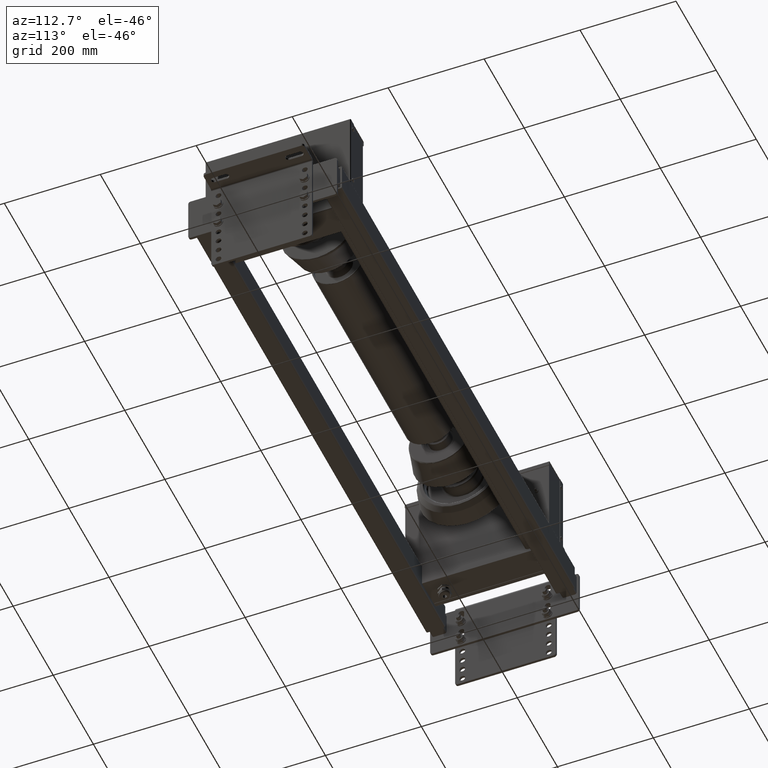
[diagram: clean part render]
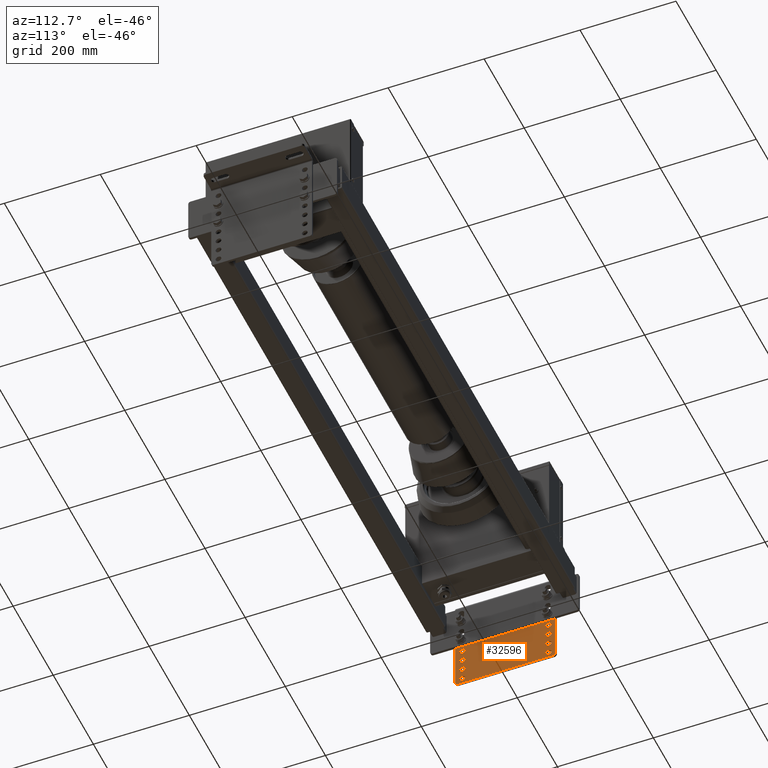
[diagram: same view with one face highlighted and labeled with its STEP entity id]
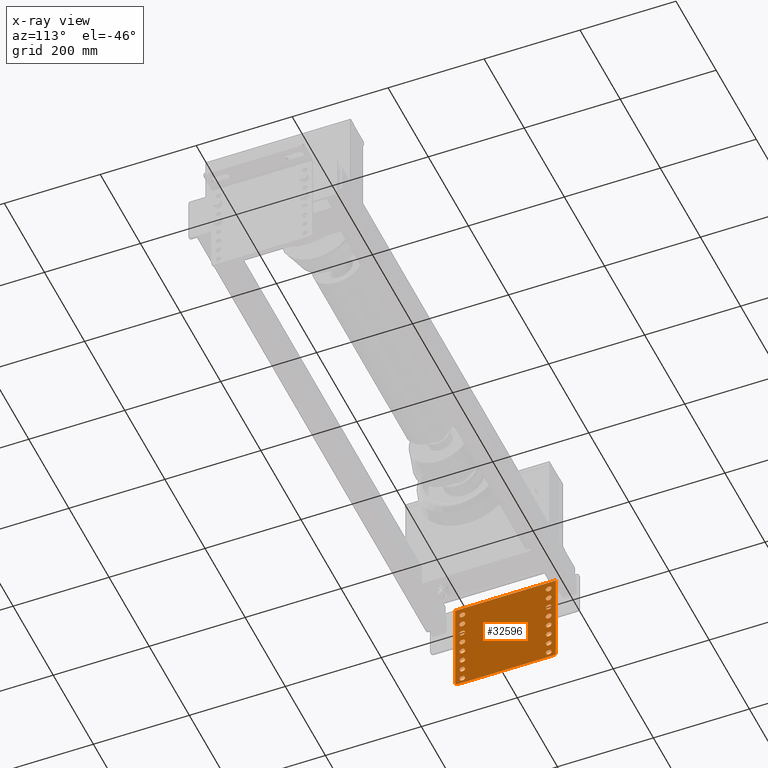
[diagram: x-ray of the same camera — body ghosted, the highlighted face saturated]
A machine part, auxiliary view. The second image highlights one B-rep face of the part: STEP entity #32596.
The next image is the same camera in x-ray: the body ghosted, the highlighted face saturated — about 0% of this face is hidden behind the body in this view.
In plain terms, the highlighted planar face has unit normal (-1, -0, -0).
Its self-contained STEP definition (entity closure, byte-faithful):
#31624=CARTESIAN_POINT('',(-80.957093014422583,-114.089066365486590,-0.500000000000000));
#31625=VERTEX_POINT('',#31624);
#31641=CARTESIAN_POINT('',(-92.957093014422583,-114.089066365486590,-0.500000000000000));
#31642=VERTEX_POINT('',#31641);
#31649=CARTESIAN_POINT('',(-86.957093014422583,-114.089066365486590,-0.500000000000000));
#31650=DIRECTION('',(0.0,0.0,1.0));
#31651=DIRECTION('',(1.0,0.0,0.0));
#31652=AXIS2_PLACEMENT_3D('',#31649,#31650,#31651);
#31653=CIRCLE('',#31652,6.0);
#31654=EDGE_CURVE('',#31625,#31642,#31653,.T.);
#31666=CARTESIAN_POINT('',(99.042906985577417,-114.089066365486590,-0.500000000000000));
#31667=VERTEX_POINT('',#31666);
#31683=CARTESIAN_POINT('',(87.042906985577417,-114.089066365486590,-0.500000000000000));
#31684=VERTEX_POINT('',#31683);
#31691=CARTESIAN_POINT('',(93.042906985577417,-114.089066365486590,-0.500000000000000));
#31692=DIRECTION('',(0.0,0.0,1.0));
#31693=DIRECTION('',(1.0,0.0,0.0));
#31694=AXIS2_PLACEMENT_3D('',#31691,#31692,#31693);
#31695=CIRCLE('',#31694,6.0);
#31696=EDGE_CURVE('',#31667,#31684,#31695,.T.);
#31708=CARTESIAN_POINT('',(-80.957093014422583,-89.089066365486588,-0.500000000000000));
#31709=VERTEX_POINT('',#31708);
#31725=CARTESIAN_POINT('',(-92.957093014422583,-89.089066365486588,-0.500000000000000));
#31726=VERTEX_POINT('',#31725);
#31733=CARTESIAN_POINT('',(-86.957093014422583,-89.089066365486588,-0.500000000000000));
#31734=DIRECTION('',(0.0,0.0,1.0));
#31735=DIRECTION('',(1.0,0.0,0.0));
#31736=AXIS2_PLACEMENT_3D('',#31733,#31734,#31735);
#31737=CIRCLE('',#31736,6.0);
#31738=EDGE_CURVE('',#31709,#31726,#31737,.T.);
#31750=CARTESIAN_POINT('',(99.042906985577417,-89.089066365486588,-0.500000000000000));
#31751=VERTEX_POINT('',#31750);
#31767=CARTESIAN_POINT('',(87.042906985577417,-89.089066365486588,-0.500000000000000));
#31768=VERTEX_POINT('',#31767);
#31775=CARTESIAN_POINT('',(93.042906985577417,-89.089066365486588,-0.500000000000000));
#31776=DIRECTION('',(0.0,0.0,1.0));
#31777=DIRECTION('',(1.0,0.0,0.0));
#31778=AXIS2_PLACEMENT_3D('',#31775,#31776,#31777);
#31779=CIRCLE('',#31778,6.0);
#31780=EDGE_CURVE('',#31751,#31768,#31779,.T.);
#31792=CARTESIAN_POINT('',(-80.957093014422568,-64.089066365486588,-0.500000000000000));
#31793=VERTEX_POINT('',#31792);
#31809=CARTESIAN_POINT('',(-92.957093014422568,-64.089066365486588,-0.500000000000000));
#31810=VERTEX_POINT('',#31809);
#31817=CARTESIAN_POINT('',(-86.957093014422568,-64.089066365486588,-0.500000000000000));
#31818=DIRECTION('',(0.0,0.0,1.0));
#31819=DIRECTION('',(1.0,0.0,0.0));
#31820=AXIS2_PLACEMENT_3D('',#31817,#31818,#31819);
#31821=CIRCLE('',#31820,6.0);
#31822=EDGE_CURVE('',#31793,#31810,#31821,.T.);
#31834=CARTESIAN_POINT('',(99.042906985577417,-64.089066365486588,-0.500000000000000));
#31835=VERTEX_POINT('',#31834);
#31851=CARTESIAN_POINT('',(87.042906985577417,-64.089066365486588,-0.500000000000000));
#31852=VERTEX_POINT('',#31851);
#31859=CARTESIAN_POINT('',(93.042906985577417,-64.089066365486588,-0.500000000000000));
#31860=DIRECTION('',(0.0,0.0,1.0));
#31861=DIRECTION('',(1.0,0.0,0.0));
#31862=AXIS2_PLACEMENT_3D('',#31859,#31860,#31861);
#31863=CIRCLE('',#31862,6.0);
#31864=EDGE_CURVE('',#31835,#31852,#31863,.T.);
#31876=CARTESIAN_POINT('',(-80.957093014422568,-39.089066365486588,-0.500000000000000));
#31877=VERTEX_POINT('',#31876);
#31893=CARTESIAN_POINT('',(-92.957093014422568,-39.089066365486588,-0.500000000000000));
#31894=VERTEX_POINT('',#31893);
#31901=CARTESIAN_POINT('',(-86.957093014422568,-39.089066365486588,-0.500000000000000));
#31902=DIRECTION('',(0.0,0.0,1.0));
#31903=DIRECTION('',(1.0,0.0,0.0));
#31904=AXIS2_PLACEMENT_3D('',#31901,#31902,#31903);
#31905=CIRCLE('',#31904,6.0);
#31906=EDGE_CURVE('',#31877,#31894,#31905,.T.);
#31918=CARTESIAN_POINT('',(99.042906985577446,-39.089066365486588,-0.500000000000000));
#31919=VERTEX_POINT('',#31918);
#31935=CARTESIAN_POINT('',(87.042906985577446,-39.089066365486588,-0.500000000000000));
#31936=VERTEX_POINT('',#31935);
#31943=CARTESIAN_POINT('',(93.042906985577446,-39.089066365486588,-0.500000000000000));
#31944=DIRECTION('',(0.0,0.0,1.0));
#31945=DIRECTION('',(1.0,0.0,0.0));
#31946=AXIS2_PLACEMENT_3D('',#31943,#31944,#31945);
#31947=CIRCLE('',#31946,6.0);
#31948=EDGE_CURVE('',#31919,#31936,#31947,.T.);
#31960=CARTESIAN_POINT('',(-80.957093014422554,-14.089066365486588,-0.500000000000000));
#31961=VERTEX_POINT('',#31960);
#31977=CARTESIAN_POINT('',(-92.957093014422554,-14.089066365486588,-0.500000000000000));
#31978=VERTEX_POINT('',#31977);
#31985=CARTESIAN_POINT('',(-86.957093014422554,-14.089066365486588,-0.500000000000000));
#31986=DIRECTION('',(0.0,0.0,1.0));
#31987=DIRECTION('',(1.0,0.0,0.0));
#31988=AXIS2_PLACEMENT_3D('',#31985,#31986,#31987);
#31989=CIRCLE('',#31988,6.0);
#31990=EDGE_CURVE('',#31961,#31978,#31989,.T.);
#32002=CARTESIAN_POINT('',(99.042906985577446,-14.089066365486588,-0.500000000000000));
#32003=VERTEX_POINT('',#32002);
#32019=CARTESIAN_POINT('',(87.042906985577446,-14.089066365486588,-0.500000000000000));
#32020=VERTEX_POINT('',#32019);
#32027=CARTESIAN_POINT('',(93.042906985577446,-14.089066365486588,-0.500000000000000));
#32028=DIRECTION('',(0.0,0.0,1.0));
#32029=DIRECTION('',(1.0,0.0,0.0));
#32030=AXIS2_PLACEMENT_3D('',#32027,#32028,#32029);
#32031=CIRCLE('',#32030,6.0);
#32032=EDGE_CURVE('',#32003,#32020,#32031,.T.);
#32044=CARTESIAN_POINT('',(-80.957093014422554,10.910933634513412,-0.500000000000000));
#32045=VERTEX_POINT('',#32044);
#32061=CARTESIAN_POINT('',(-92.957093014422554,10.910933634513412,-0.500000000000000));
#32062=VERTEX_POINT('',#32061);
#32069=CARTESIAN_POINT('',(-86.957093014422554,10.910933634513412,-0.500000000000000));
#32070=DIRECTION('',(0.0,0.0,1.0));
#32071=DIRECTION('',(1.0,0.0,0.0));
#32072=AXIS2_PLACEMENT_3D('',#32069,#32070,#32071);
#32073=CIRCLE('',#32072,6.0);
#32074=EDGE_CURVE('',#32045,#32062,#32073,.T.);
#32086=CARTESIAN_POINT('',(99.042906985577446,10.910933634513412,-0.500000000000000));
#32087=VERTEX_POINT('',#32086);
#32103=CARTESIAN_POINT('',(87.042906985577446,10.910933634513412,-0.500000000000000));
#32104=VERTEX_POINT('',#32103);
#32111=CARTESIAN_POINT('',(93.042906985577446,10.910933634513412,-0.500000000000000));
#32112=DIRECTION('',(0.0,0.0,1.0));
#32113=DIRECTION('',(1.0,0.0,0.0));
#32114=AXIS2_PLACEMENT_3D('',#32111,#32112,#32113);
#32115=CIRCLE('',#32114,6.0);
#32116=EDGE_CURVE('',#32087,#32104,#32115,.T.);
#32128=CARTESIAN_POINT('',(-80.957093014422554,35.910933634513412,-0.500000000000000));
#32129=VERTEX_POINT('',#32128);
#32145=CARTESIAN_POINT('',(-92.957093014422554,35.910933634513412,-0.500000000000000));
#32146=VERTEX_POINT('',#32145);
#32153=CARTESIAN_POINT('',(-86.957093014422554,35.910933634513412,-0.500000000000000));
#32154=DIRECTION('',(0.0,0.0,1.0));
#32155=DIRECTION('',(1.0,0.0,0.0));
#32156=AXIS2_PLACEMENT_3D('',#32153,#32154,#32155);
#32157=CIRCLE('',#32156,6.0);
#32158=EDGE_CURVE('',#32129,#32146,#32157,.T.);
#32170=CARTESIAN_POINT('',(99.042906985577446,35.910933634513412,-0.500000000000000));
#32171=VERTEX_POINT('',#32170);
#32187=CARTESIAN_POINT('',(87.042906985577446,35.910933634513412,-0.500000000000000));
#32188=VERTEX_POINT('',#32187);
#32195=CARTESIAN_POINT('',(93.042906985577446,35.910933634513412,-0.500000000000000));
#32196=DIRECTION('',(0.0,0.0,1.0));
#32197=DIRECTION('',(1.0,0.0,0.0));
#32198=AXIS2_PLACEMENT_3D('',#32195,#32196,#32197);
#32199=CIRCLE('',#32198,6.0);
#32200=EDGE_CURVE('',#32171,#32188,#32199,.T.);
#32212=CARTESIAN_POINT('',(-80.957093014422540,60.910933634513412,-0.500000000000000));
#32213=VERTEX_POINT('',#32212);
#32229=CARTESIAN_POINT('',(-92.957093014422540,60.910933634513412,-0.500000000000000));
#32230=VERTEX_POINT('',#32229);
#32237=CARTESIAN_POINT('',(-86.957093014422540,60.910933634513412,-0.500000000000000));
#32238=DIRECTION('',(0.0,0.0,1.0));
#32239=DIRECTION('',(1.0,0.0,0.0));
#32240=AXIS2_PLACEMENT_3D('',#32237,#32238,#32239);
#32241=CIRCLE('',#32240,6.0);
#32242=EDGE_CURVE('',#32213,#32230,#32241,.T.);
#32254=CARTESIAN_POINT('',(99.042906985577446,60.910933634513412,-0.500000000000000));
#32255=VERTEX_POINT('',#32254);
#32271=CARTESIAN_POINT('',(87.042906985577446,60.910933634513412,-0.500000000000000));
#32272=VERTEX_POINT('',#32271);
#32279=CARTESIAN_POINT('',(93.042906985577446,60.910933634513412,-0.500000000000000));
#32280=DIRECTION('',(0.0,0.0,1.0));
#32281=DIRECTION('',(1.0,0.0,0.0));
#32282=AXIS2_PLACEMENT_3D('',#32279,#32280,#32281);
#32283=CIRCLE('',#32282,6.0);
#32284=EDGE_CURVE('',#32255,#32272,#32283,.T.);
#32305=CARTESIAN_POINT('',(103.042906985577450,-126.589066365486590,-0.500000000000000));
#32306=VERTEX_POINT('',#32305);
#32313=CARTESIAN_POINT('',(108.042906985577450,-121.589066365486590,-0.500000000000000));
#32314=VERTEX_POINT('',#32313);
#32315=CARTESIAN_POINT('',(103.042906985577450,-121.589066365486590,-0.500000000000000));
#32316=DIRECTION('',(0.0,0.0,1.000000000000000));
#32317=DIRECTION('',(0.707106781186547,-0.707106781186547,0.0));
#32318=AXIS2_PLACEMENT_3D('',#32315,#32316,#32317);
#32319=CIRCLE('',#32318,4.999999999999999);
#32320=EDGE_CURVE('',#32306,#32314,#32319,.T.);
#32337=CARTESIAN_POINT('',(108.042906985577450,78.410933634513455,-0.500000000000000));
#32338=VERTEX_POINT('',#32337);
#32339=CARTESIAN_POINT('',(108.042906985577450,78.410933634513455,-0.500000000000000));
#32340=DIRECTION('',(0.0,-1.0,0.0));
#32341=VECTOR('',#32340,200.000000000000060);
#32342=LINE('',#32339,#32341);
#32343=EDGE_CURVE('',#32338,#32314,#32342,.T.);
#32396=CARTESIAN_POINT('',(3.042906985577438,-19.089066365486588,-0.500000000000000));
#32397=DIRECTION('',(0.0,0.0,1.0));
#32398=DIRECTION('',(1.0,0.0,0.0));
#32399=AXIS2_PLACEMENT_3D('',#32396,#32397,#32398);
#32400=PLANE('',#32399);
#32401=ORIENTED_EDGE('',*,*,#32320,.F.);
#32402=CARTESIAN_POINT('',(-96.957093014422583,-126.589066365486590,-0.500000000000000));
#32403=VERTEX_POINT('',#32402);
#32404=CARTESIAN_POINT('',(103.042906985577450,-126.589066365486590,-0.500000000000000));
#32405=DIRECTION('',(-1.0,0.0,0.0));
#32406=VECTOR('',#32405,200.000000000000030);
#32407=LINE('',#32404,#32406);
#32408=EDGE_CURVE('',#32306,#32403,#32407,.T.);
#32409=ORIENTED_EDGE('',*,*,#32408,.T.);
#32410=CARTESIAN_POINT('',(-101.957093014422580,-121.589066365486590,-0.500000000000000));
#32411=VERTEX_POINT('',#32410);
#32412=CARTESIAN_POINT('',(-96.957093014422583,-121.589066365486590,-0.500000000000000));
#32413=DIRECTION('',(0.0,0.0,1.000000000000000));
#32414=DIRECTION('',(-0.707106781186547,-0.707106781186547,0.0));
#32415=AXIS2_PLACEMENT_3D('',#32412,#32413,#32414);
#32416=CIRCLE('',#32415,4.999999999999999);
#32417=EDGE_CURVE('',#32411,#32403,#32416,.T.);
#32418=ORIENTED_EDGE('',*,*,#32417,.F.);
#32419=CARTESIAN_POINT('',(-101.957093014422580,78.410933634513441,-0.500000000000000));
#32420=VERTEX_POINT('',#32419);
#32421=CARTESIAN_POINT('',(-101.957093014422580,-121.589066365486590,-0.500000000000000));
#32422=DIRECTION('',(0.0,1.0,0.0));
#32423=VECTOR('',#32422,200.000000000000030);
#32424=LINE('',#32421,#32423);
#32425=EDGE_CURVE('',#32411,#32420,#32424,.T.);
#32426=ORIENTED_EDGE('',*,*,#32425,.T.);
#32427=CARTESIAN_POINT('',(108.042906985577450,78.410933634513455,-0.500000000000000));
#32428=DIRECTION('',(-1.0,0.0,0.0));
#32429=VECTOR('',#32428,210.000000000000030);
#32430=LINE('',#32427,#32429);
#32431=EDGE_CURVE('',#32338,#32420,#32430,.T.);
#32432=ORIENTED_EDGE('',*,*,#32431,.F.);
#32433=ORIENTED_EDGE('',*,*,#32343,.T.);
#32434=EDGE_LOOP('',(#32401,#32409,#32418,#32426,#32432,#32433));
#32435=FACE_OUTER_BOUND('',#32434,.T.);
#32436=CARTESIAN_POINT('',(93.042906985577446,60.910933634513412,-0.500000000000000));
#32437=DIRECTION('',(0.0,0.0,1.0));
#32438=DIRECTION('',(1.0,0.0,0.0));
#32439=AXIS2_PLACEMENT_3D('',#32436,#32437,#32438);
#32440=CIRCLE('',#32439,6.0);
#32441=EDGE_CURVE('',#32272,#32255,#32440,.T.);
#32442=ORIENTED_EDGE('',*,*,#32441,.T.);
#32443=ORIENTED_EDGE('',*,*,#32284,.T.);
#32444=EDGE_LOOP('',(#32442,#32443));
#32445=FACE_BOUND('',#32444,.T.);
#32446=CARTESIAN_POINT('',(-86.957093014422540,60.910933634513412,-0.500000000000000));
#32447=DIRECTION('',(0.0,0.0,1.0));
#32448=DIRECTION('',(1.0,0.0,0.0));
#32449=AXIS2_PLACEMENT_3D('',#32446,#32447,#32448);
#32450=CIRCLE('',#32449,6.0);
#32451=EDGE_CURVE('',#32230,#32213,#32450,.T.);
#32452=ORIENTED_EDGE('',*,*,#32451,.T.);
#32453=ORIENTED_EDGE('',*,*,#32242,.T.);
#32454=EDGE_LOOP('',(#32452,#32453));
#32455=FACE_BOUND('',#32454,.T.);
#32456=CARTESIAN_POINT('',(93.042906985577446,35.910933634513412,-0.500000000000000));
#32457=DIRECTION('',(0.0,0.0,1.0));
#32458=DIRECTION('',(1.0,0.0,0.0));
#32459=AXIS2_PLACEMENT_3D('',#32456,#32457,#32458);
#32460=CIRCLE('',#32459,6.0);
#32461=EDGE_CURVE('',#32188,#32171,#32460,.T.);
#32462=ORIENTED_EDGE('',*,*,#32461,.T.);
#32463=ORIENTED_EDGE('',*,*,#32200,.T.);
#32464=EDGE_LOOP('',(#32462,#32463));
#32465=FACE_BOUND('',#32464,.T.);
#32466=CARTESIAN_POINT('',(-86.957093014422554,35.910933634513412,-0.500000000000000));
#32467=DIRECTION('',(0.0,0.0,1.0));
#32468=DIRECTION('',(1.0,0.0,0.0));
#32469=AXIS2_PLACEMENT_3D('',#32466,#32467,#32468);
#32470=CIRCLE('',#32469,6.0);
#32471=EDGE_CURVE('',#32146,#32129,#32470,.T.);
#32472=ORIENTED_EDGE('',*,*,#32471,.T.);
#32473=ORIENTED_EDGE('',*,*,#32158,.T.);
#32474=EDGE_LOOP('',(#32472,#32473));
#32475=FACE_BOUND('',#32474,.T.);
#32476=CARTESIAN_POINT('',(93.042906985577446,10.910933634513412,-0.500000000000000));
#32477=DIRECTION('',(0.0,0.0,1.0));
#32478=DIRECTION('',(1.0,0.0,0.0));
#32479=AXIS2_PLACEMENT_3D('',#32476,#32477,#32478);
#32480=CIRCLE('',#32479,6.0);
#32481=EDGE_CURVE('',#32104,#32087,#32480,.T.);
#32482=ORIENTED_EDGE('',*,*,#32481,.T.);
#32483=ORIENTED_EDGE('',*,*,#32116,.T.);
#32484=EDGE_LOOP('',(#32482,#32483));
#32485=FACE_BOUND('',#32484,.T.);
#32486=CARTESIAN_POINT('',(-86.957093014422554,10.910933634513412,-0.500000000000000));
#32487=DIRECTION('',(0.0,0.0,1.0));
#32488=DIRECTION('',(1.0,0.0,0.0));
#32489=AXIS2_PLACEMENT_3D('',#32486,#32487,#32488);
#32490=CIRCLE('',#32489,6.0);
#32491=EDGE_CURVE('',#32062,#32045,#32490,.T.);
#32492=ORIENTED_EDGE('',*,*,#32491,.T.);
#32493=ORIENTED_EDGE('',*,*,#32074,.T.);
#32494=EDGE_LOOP('',(#32492,#32493));
#32495=FACE_BOUND('',#32494,.T.);
#32496=CARTESIAN_POINT('',(93.042906985577446,-14.089066365486588,-0.500000000000000));
#32497=DIRECTION('',(0.0,0.0,1.0));
#32498=DIRECTION('',(1.0,0.0,0.0));
#32499=AXIS2_PLACEMENT_3D('',#32496,#32497,#32498);
#32500=CIRCLE('',#32499,6.0);
#32501=EDGE_CURVE('',#32020,#32003,#32500,.T.);
#32502=ORIENTED_EDGE('',*,*,#32501,.T.);
#32503=ORIENTED_EDGE('',*,*,#32032,.T.);
#32504=EDGE_LOOP('',(#32502,#32503));
#32505=FACE_BOUND('',#32504,.T.);
#32506=CARTESIAN_POINT('',(-86.957093014422554,-14.089066365486588,-0.500000000000000));
#32507=DIRECTION('',(0.0,0.0,1.0));
#32508=DIRECTION('',(1.0,0.0,0.0));
#32509=AXIS2_PLACEMENT_3D('',#32506,#32507,#32508);
#32510=CIRCLE('',#32509,6.0);
#32511=EDGE_CURVE('',#31978,#31961,#32510,.T.);
#32512=ORIENTED_EDGE('',*,*,#32511,.T.);
#32513=ORIENTED_EDGE('',*,*,#31990,.T.);
#32514=EDGE_LOOP('',(#32512,#32513));
#32515=FACE_BOUND('',#32514,.T.);
#32516=CARTESIAN_POINT('',(93.042906985577446,-39.089066365486588,-0.500000000000000));
#32517=DIRECTION('',(0.0,0.0,1.0));
#32518=DIRECTION('',(1.0,0.0,0.0));
#32519=AXIS2_PLACEMENT_3D('',#32516,#32517,#32518);
#32520=CIRCLE('',#32519,6.0);
#32521=EDGE_CURVE('',#31936,#31919,#32520,.T.);
#32522=ORIENTED_EDGE('',*,*,#32521,.T.);
#32523=ORIENTED_EDGE('',*,*,#31948,.T.);
#32524=EDGE_LOOP('',(#32522,#32523));
#32525=FACE_BOUND('',#32524,.T.);
#32526=CARTESIAN_POINT('',(-86.957093014422568,-39.089066365486588,-0.500000000000000));
#32527=DIRECTION('',(0.0,0.0,1.0));
#32528=DIRECTION('',(1.0,0.0,0.0));
#32529=AXIS2_PLACEMENT_3D('',#32526,#32527,#32528);
#32530=CIRCLE('',#32529,6.0);
#32531=EDGE_CURVE('',#31894,#31877,#32530,.T.);
#32532=ORIENTED_EDGE('',*,*,#32531,.T.);
#32533=ORIENTED_EDGE('',*,*,#31906,.T.);
#32534=EDGE_LOOP('',(#32532,#32533));
#32535=FACE_BOUND('',#32534,.T.);
#32536=CARTESIAN_POINT('',(93.042906985577417,-64.089066365486588,-0.500000000000000));
#32537=DIRECTION('',(0.0,0.0,1.0));
#32538=DIRECTION('',(1.0,0.0,0.0));
#32539=AXIS2_PLACEMENT_3D('',#32536,#32537,#32538);
#32540=CIRCLE('',#32539,6.0);
#32541=EDGE_CURVE('',#31852,#31835,#32540,.T.);
#32542=ORIENTED_EDGE('',*,*,#32541,.T.);
#32543=ORIENTED_EDGE('',*,*,#31864,.T.);
#32544=EDGE_LOOP('',(#32542,#32543));
#32545=FACE_BOUND('',#32544,.T.);
#32546=CARTESIAN_POINT('',(-86.957093014422568,-64.089066365486588,-0.500000000000000));
#32547=DIRECTION('',(0.0,0.0,1.0));
#32548=DIRECTION('',(1.0,0.0,0.0));
#32549=AXIS2_PLACEMENT_3D('',#32546,#32547,#32548);
#32550=CIRCLE('',#32549,6.0);
#32551=EDGE_CURVE('',#31810,#31793,#32550,.T.);
#32552=ORIENTED_EDGE('',*,*,#32551,.T.);
#32553=ORIENTED_EDGE('',*,*,#31822,.T.);
#32554=EDGE_LOOP('',(#32552,#32553));
#32555=FACE_BOUND('',#32554,.T.);
#32556=CARTESIAN_POINT('',(93.042906985577417,-89.089066365486588,-0.500000000000000));
#32557=DIRECTION('',(0.0,0.0,1.0));
#32558=DIRECTION('',(1.0,0.0,0.0));
#32559=AXIS2_PLACEMENT_3D('',#32556,#32557,#32558);
#32560=CIRCLE('',#32559,6.0);
#32561=EDGE_CURVE('',#31768,#31751,#32560,.T.);
#32562=ORIENTED_EDGE('',*,*,#32561,.T.);
#32563=ORIENTED_EDGE('',*,*,#31780,.T.);
#32564=EDGE_LOOP('',(#32562,#32563));
#32565=FACE_BOUND('',#32564,.T.);
#32566=CARTESIAN_POINT('',(-86.957093014422583,-89.089066365486588,-0.500000000000000));
#32567=DIRECTION('',(0.0,0.0,1.0));
#32568=DIRECTION('',(1.0,0.0,0.0));
#32569=AXIS2_PLACEMENT_3D('',#32566,#32567,#32568);
#32570=CIRCLE('',#32569,6.0);
#32571=EDGE_CURVE('',#31726,#31709,#32570,.T.);
#32572=ORIENTED_EDGE('',*,*,#32571,.T.);
#32573=ORIENTED_EDGE('',*,*,#31738,.T.);
#32574=EDGE_LOOP('',(#32572,#32573));
#32575=FACE_BOUND('',#32574,.T.);
#32576=CARTESIAN_POINT('',(93.042906985577417,-114.089066365486590,-0.500000000000000));
#32577=DIRECTION('',(0.0,0.0,1.0));
#32578=DIRECTION('',(1.0,0.0,0.0));
#32579=AXIS2_PLACEMENT_3D('',#32576,#32577,#32578);
#32580=CIRCLE('',#32579,6.0);
#32581=EDGE_CURVE('',#31684,#31667,#32580,.T.);
#32582=ORIENTED_EDGE('',*,*,#32581,.T.);
#32583=ORIENTED_EDGE('',*,*,#31696,.T.);
#32584=EDGE_LOOP('',(#32582,#32583));
#32585=FACE_BOUND('',#32584,.T.);
#32586=CARTESIAN_POINT('',(-86.957093014422583,-114.089066365486590,-0.500000000000000));
#32587=DIRECTION('',(0.0,0.0,1.0));
#32588=DIRECTION('',(1.0,0.0,0.0));
#32589=AXIS2_PLACEMENT_3D('',#32586,#32587,#32588);
#32590=CIRCLE('',#32589,6.0);
#32591=EDGE_CURVE('',#31642,#31625,#32590,.T.);
#32592=ORIENTED_EDGE('',*,*,#32591,.T.);
#32593=ORIENTED_EDGE('',*,*,#31654,.T.);
#32594=EDGE_LOOP('',(#32592,#32593));
#32595=FACE_BOUND('',#32594,.T.);
#32596=ADVANCED_FACE('',(#32435,#32445,#32455,#32465,#32475,#32485,#32495,#32505,#32515,#32525,#32535,#32545,#32555,#32565,#32575,#32585,#32595),#32400,.F.);